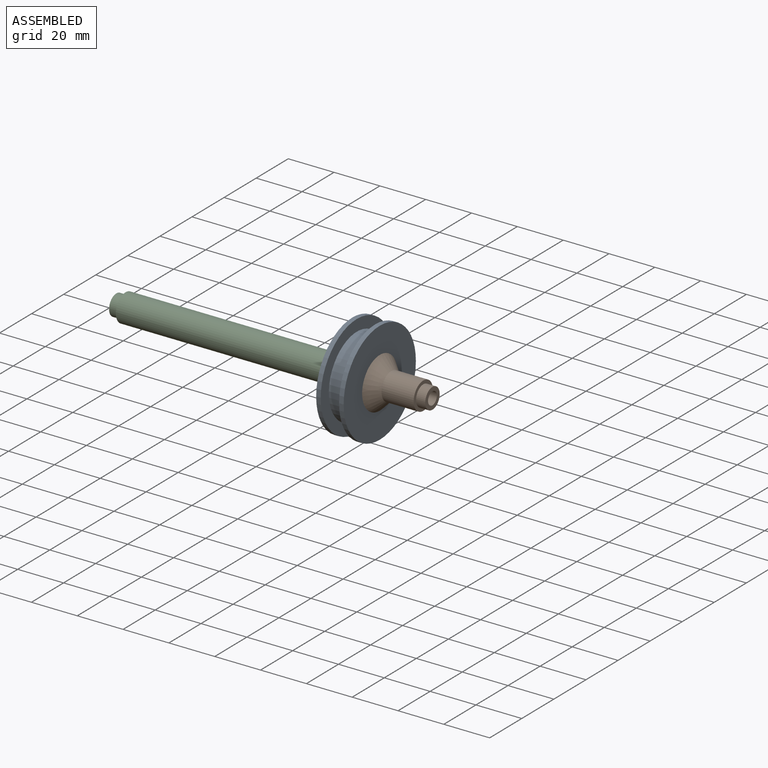
[diagram: assembled view]
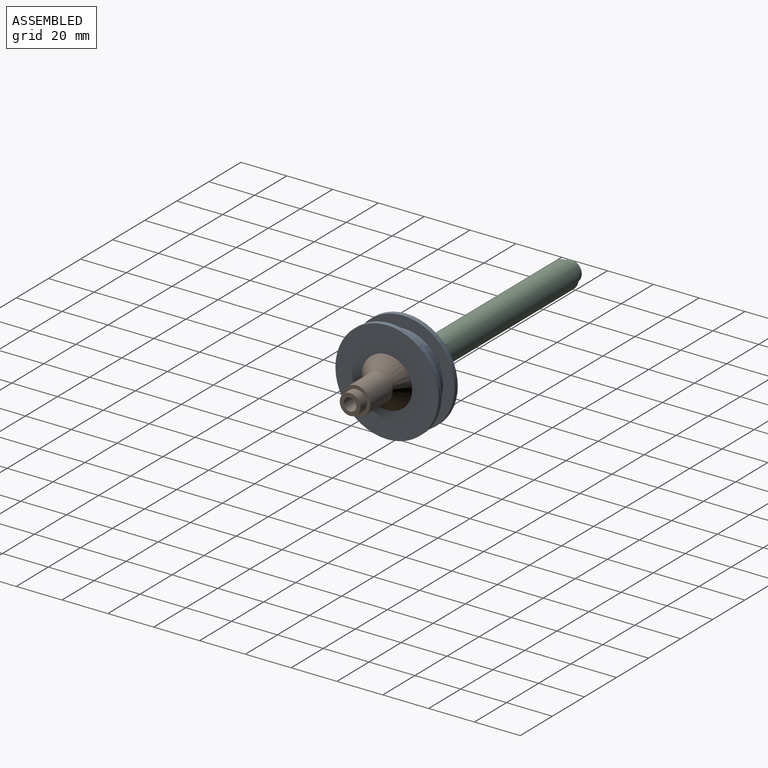
[diagram: assembled view, second angle]
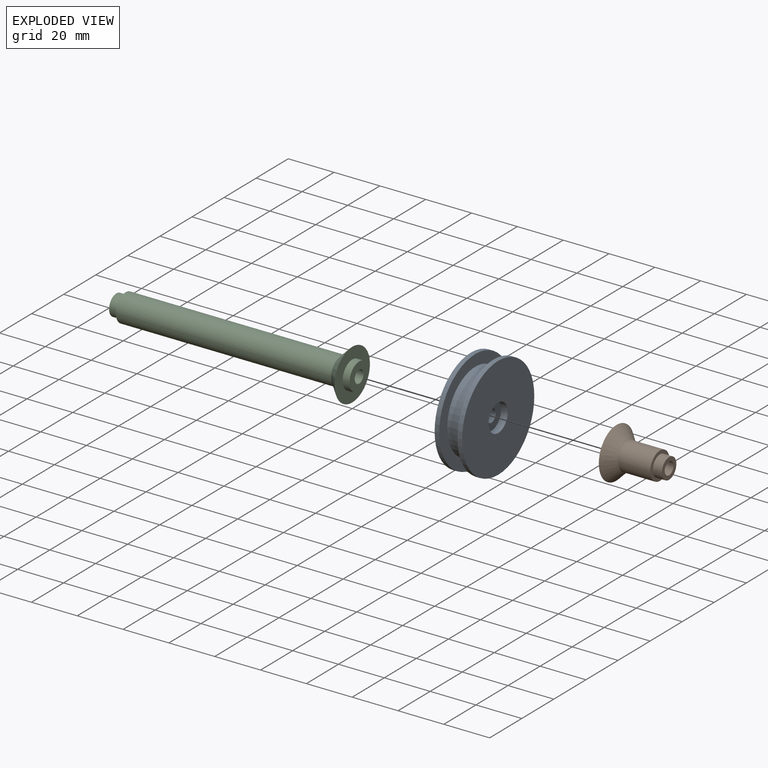
[diagram: exploded view]
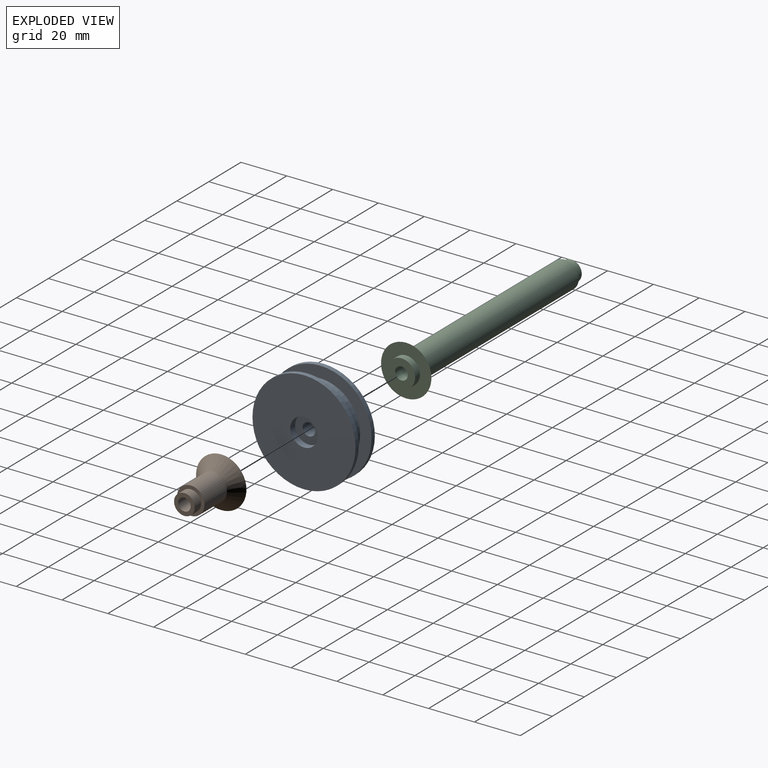
[diagram: exploded view, second angle]
ASSEMBLY  parts=3 mates=2
PART A: 12 faces, bbox 12x45x45 mm
  f0: cylinder r=6mm len=12mm, axis (-1,0,0), area 113.1mm2, adj f2,f11
  f1: cylinder r=22.5mm len=45mm, axis (-1,0,0), area 282.7mm2, adj f2,f4
  f2: plane 45x45mm, normal (-1,0,0), area 1477.3mm2, adj f0,f1
  f3: cylinder r=17.5mm len=35mm, axis (1,0,0), area 879.6mm2, adj f4,f5
  f4: plane 45x45mm, normal (1,0,0), area 628.3mm2, adj f1,f3
  f5: plane 45x45mm, normal (-1,0,0), area 628.3mm2, adj f3,f7
  f6: plane 45x45mm, normal (1,0,0), area 1477.3mm2, adj f7,f8
  f7: cylinder r=22.5mm len=45mm, axis (-1,0,0), area 282.7mm2, adj f5,f6
  f8: cylinder r=6mm len=12mm, axis (-1,0,0), area 113.1mm2, adj f6,f10
  f9: cylinder r=2.75mm len=6mm, axis (-1,0,0), area 103.7mm2, adj f10,f11
  f10: plane 12x12mm, normal (1,0,0), area 89.3mm2, adj f8,f9
  f11: plane 12x12mm, normal (-1,0,0), area 89.3mm2, adj f0,f9
PART B: 9 faces, bbox 26x22x22 mm
  f0: plane 12x12mm, normal (1,0,0), area 49.5mm2, adj f1,f3
  f1: cylinder r=6mm len=14mm, axis (-1,0,0), area 527.8mm2, adj f0,f2
  f2: cone r=6mm half-angle=45deg, axis (-1,0,0), area 377.6mm2, adj f1,f6
  f3: cylinder r=4.5mm len=9mm, axis (-1,0,0), area 113.1mm2, adj f0,f4
  f4: plane 9x9mm, normal (1,0,0), area 39.9mm2, adj f3,f5
  f5: cylinder r=2.75mm len=26mm, axis (-1,0,0), area 449.2mm2, adj f4,f8
  f6: plane 22x22mm, normal (-1,0,0), area 267mm2, adj f2,f7
  f7: cylinder r=6mm len=12mm, axis (-1,0,0), area 113.1mm2, adj f6,f8
  f8: plane 12x12mm, normal (-1,0,0), area 89.3mm2, adj f5,f7
PART C: 9 faces, bbox 106x22x22 mm
  f0: plane 22x22mm, normal (1,0,0), area 267mm2, adj f3,f7
  f1: plane 12x12mm, normal (-1,0,0), area 49.5mm2, adj f2,f4
  f2: cylinder r=6mm len=94mm, axis (-1,0,0), area 3543.7mm2, adj f1,f3
  f3: cone r=11mm half-angle=45deg, axis (1,0,0), area 377.6mm2, adj f0,f2
  f4: cylinder r=4.5mm len=9mm, axis (-1,0,0), area 113.1mm2, adj f1,f5
  f5: plane 9x9mm, normal (-1,0,0), area 39.9mm2, adj f4,f6
  f6: cylinder r=2.75mm len=106mm, axis (-1,0,0), area 1831.5mm2, adj f5,f8
  f7: cylinder r=6mm len=12mm, axis (-1,0,0), area 113.1mm2, adj f0,f8
  f8: plane 12x12mm, normal (1,0,0), area 89.3mm2, adj f6,f7
PLACE A at identity
PLACE B at identity
PLACE C at identity
MATE fastened B.f1 <-> A.f0  axis (-1,0,0) through (43,0,0)mm
MATE fastened C.f2 <-> A.f0  axis (1,0,0) through (37,0,0)mm
